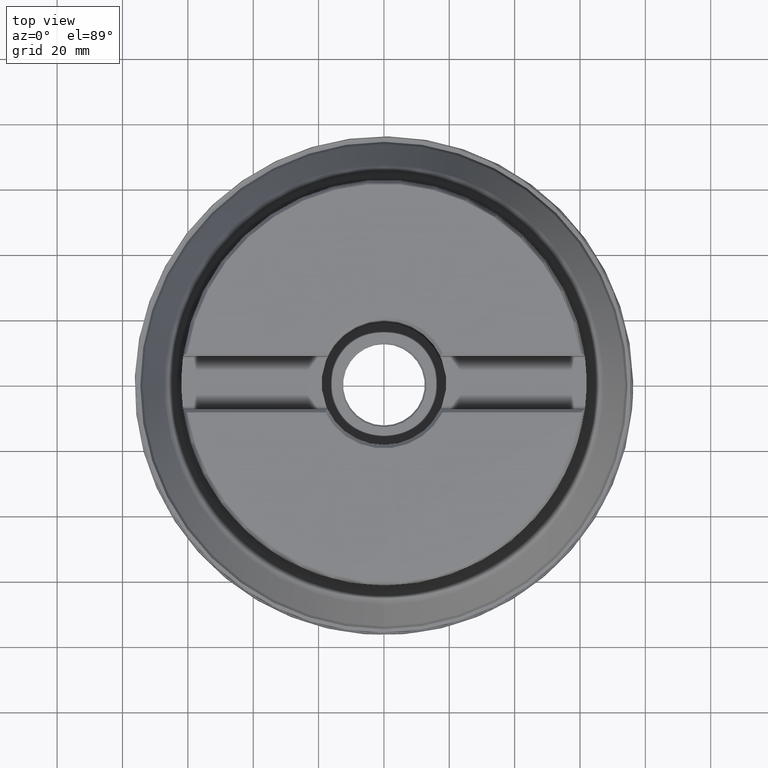
[diagram: clean part render]
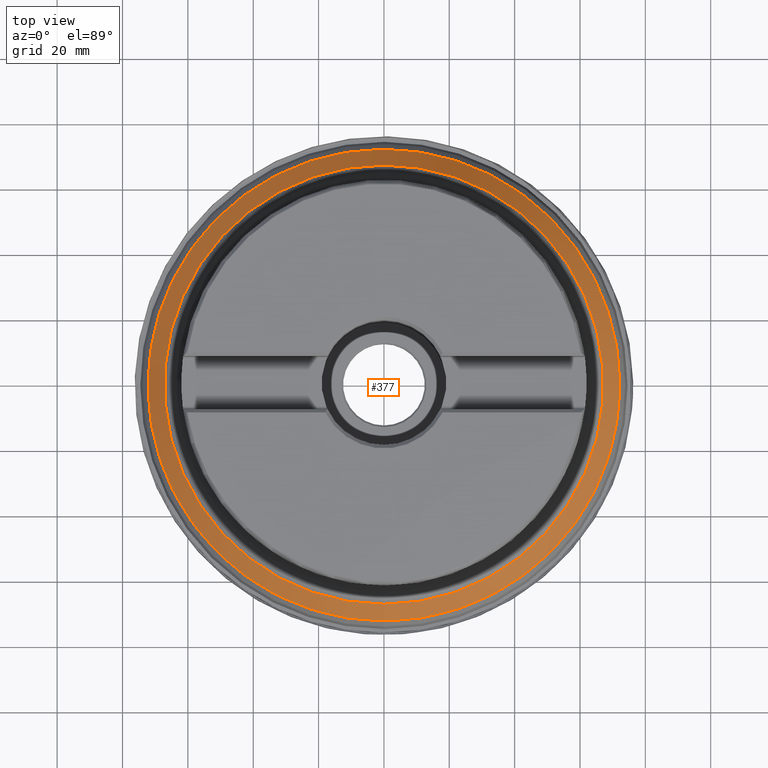
[diagram: same view with one face highlighted and labeled with its STEP entity id]
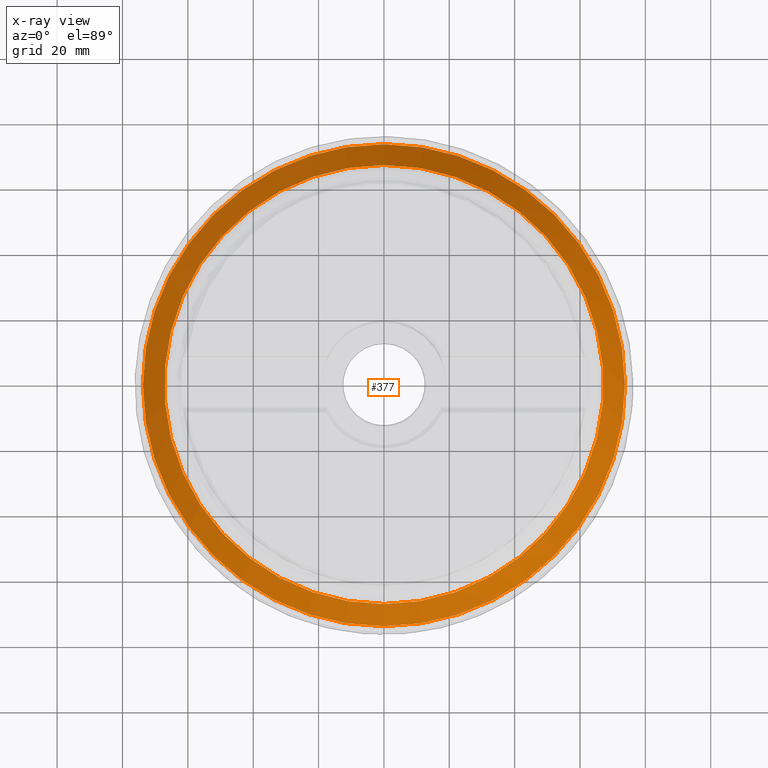
[diagram: x-ray of the same camera — body ghosted, the highlighted face saturated]
A machine part, top view. The second image highlights one B-rep face of the part: STEP entity #377.
The next image is the same camera in x-ray: the body ghosted, the highlighted face saturated — about 0% of this face is hidden behind the body in this view.
In plain terms, the highlighted conical surface has half-angle 30 deg.
Its self-contained STEP definition (entity closure, byte-faithful):
#159=CONICAL_SURFACE('',#1237,71.9875901374471,30.0000000000001);
#271=FACE_BOUND('',#501,.T.);
#272=FACE_BOUND('',#502,.T.);
#377=ADVANCED_FACE('',(#271,#272),#159,.T.);
#501=EDGE_LOOP('',(#660));
#502=EDGE_LOOP('',(#661));
#660=ORIENTED_EDGE('',*,*,#994,.T.);
#661=ORIENTED_EDGE('',*,*,#995,.T.);
#892=VERTEX_POINT('',#2078);
#893=VERTEX_POINT('',#2080);
#994=EDGE_CURVE('',#892,#892,#1094,.T.);
#995=EDGE_CURVE('',#893,#893,#1095,.T.);
#1094=CIRCLE('',#1235,67.2027008428951);
#1095=CIRCLE('',#1236,73.7587491047255);
#1235=AXIS2_PLACEMENT_3D('',#2077,#1400,#1401);
#1236=AXIS2_PLACEMENT_3D('',#2079,#1402,#1403);
#1237=AXIS2_PLACEMENT_3D('',#2081,#1404,#1405);
#1400=DIRECTION('',(0.,-1.17145536458252E-15,-1.));
#1401=DIRECTION('',(0.,-1.,1.18741179884245E-15));
#1402=DIRECTION('',(0.,1.17145536458252E-15,1.));
#1403=DIRECTION('',(0.,-1.,1.17594420799747E-15));
#1404=DIRECTION('',(0.,-1.17145536458252E-15,-1.));
#1405=DIRECTION('',(0.,1.,-1.21554468175846E-15));
#2077=CARTESIAN_POINT('',(0.,2.79783809853684E-14,23.8834375011285));
#2078=CARTESIAN_POINT('',(0.,-67.2027008428951,23.8834375011286));
#2079=CARTESIAN_POINT('',(0.,1.46760265627006E-14,12.5280288147648));
#2080=CARTESIAN_POINT('',(0.,-73.7587491047255,12.5280288147648));
#2081=CARTESIAN_POINT('',(0.,1.82697439028846E-14,15.5957661343721));